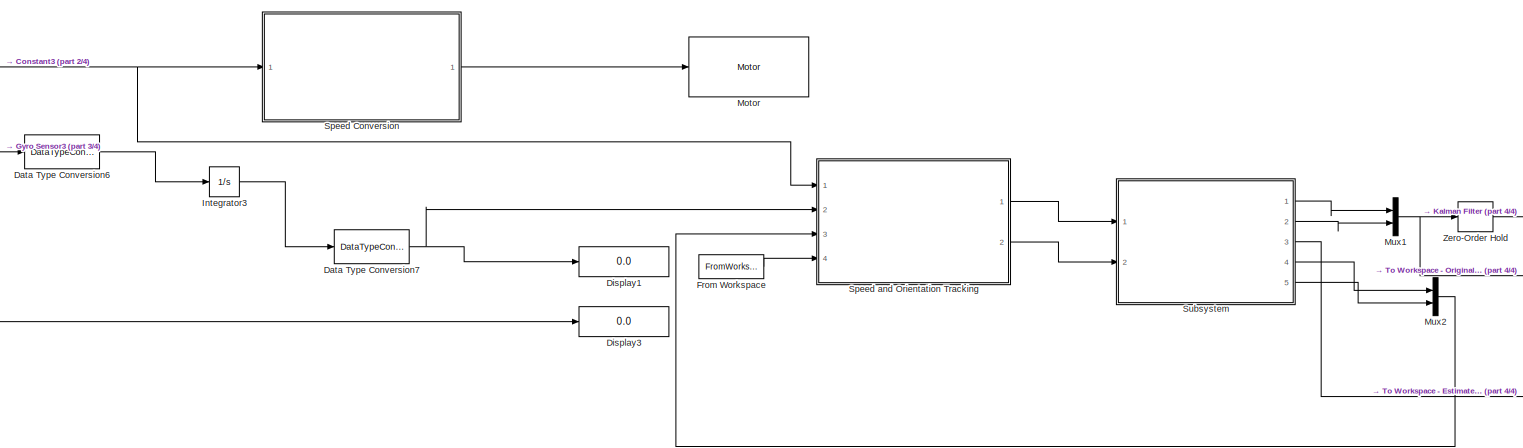
[diagram: root canvas - part 1/4, center side, full height]
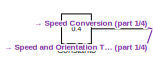
[diagram: root canvas - part 2/4, top left region]
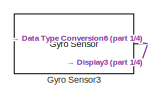
[diagram: root canvas - part 3/4, middle left region]
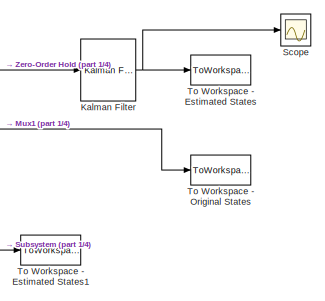
[diagram: root canvas - part 4/4, middle right region]
MODEL slx_6b7b4e6a6c40
KIND model
CONFIG AbsTol = auto
CONFIG FixedStep = auto
CONFIG MaxStep = auto
CONFIG MinStep = auto
CONFIG RelTol = 1e-3
CONFIG SampleTimeConstraint = Unconstrained
CONFIG Solver = FixedStepAuto
CONFIG SolverMode = Auto
CONFIG SolverName = FixedStepAuto
CONFIG StartTime = 0.0
CONFIG StopTime = 10.0
BLOCK [Constant] Constant3
  Value = 0.4
BLOCK [DataTypeConversion] Data Type Conversion6
  OutDataTypeStr = double
  RndMeth = Ceiling
  SaturateOnIntegerOverflow = off
BLOCK [DataTypeConversion] Data Type Conversion7
  OutDataTypeStr = int32
  RndMeth = Ceiling
  SaturateOnIntegerOverflow = off
BLOCK [Display] Display1
  Decimation = 1
  Format = long
  Ports = [1]
BLOCK [Display] Display3
  Decimation = 1
  Format = long
  Ports = [1]
BLOCK [FromWorkspace] From Workspace
  SampleTime = 0
  VariableName = xhat2
  ZeroCross = on
BLOCK [Reference] Gyro Sensor3  REF=legoev3lib/Gyro Sensor
  Ports = [0, 1]
  SourceBlock = legoev3lib/Gyro Sensor
  SourceType = LEGO MINDSTORMS EV3 Gyro Sensor
BLOCK [Integrator] Integrator3
  Ports = [1, 1]
BLOCK [Reference] Kalman Filter  REF=ctrlSharedLib/Kalman Filter
  Ports = [1, 1]
  SourceBlock = ctrlSharedLib/Kalman Filter
  SourceType = ctrlKalmanFilter
BLOCK [Reference] Motor  REF=legoev3lib/Motor
  Ports = [1]
  SourceBlock = legoev3lib/Motor
  SourceType = LEGO MINDSTORMS EV3 Motor
BLOCK [Mux] Mux1
  DisplayOption = bar
  Inputs = 2
  Ports = [2, 1]
BLOCK [Mux] Mux2
  DisplayOption = bar
  Inputs = 2
  Ports = [2, 1]
BLOCK [Scope] Scope
  Ports = [1]
  ScopeSpecificationString = C++SS(StrPVP('SaveName','ScopeData'),StrPVP('SaveName','ScopeData'),StrPVP('LimitDataPoints','on'),StrPVP('DataFormat','Array'),StrPVP('Decimation','1'),StrPVP('BlockParamSampleInput','off'),StrPVP('SaveName','ScopeData'))
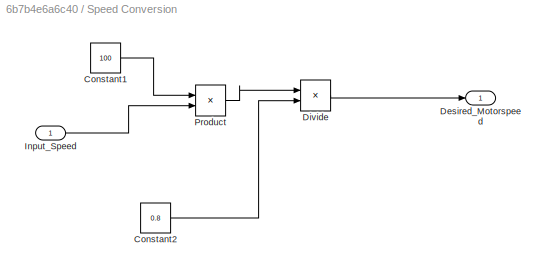
BLOCK [SubSystem] Speed Conversion
  Ports = [1, 1]
  RequestExecContextInheritance = off
  Variant = off
BLOCK [Constant] Speed Conversion/Constant1
  Value = 100
BLOCK [Constant] Speed Conversion/Constant2
  Value = 0.8
BLOCK [Outport] Speed Conversion/Desired_Motorspeed
  IconDisplay = Port number
BLOCK [Product] Speed Conversion/Divide
  InputSameDT = off
  Inputs = */
  OutDataTypeStr = Inherit: Inherit via internal rule
  Ports = [2, 1]
  RndMeth = Floor
  SaturateOnIntegerOverflow = off
BLOCK [Inport] Speed Conversion/Input_Speed
  IconDisplay = Port number
BLOCK [Product] Speed Conversion/Product
  InputSameDT = off
  OutDataTypeStr = Inherit: Inherit via internal rule
  Ports = [2, 1]
  RndMeth = Floor
  SaturateOnIntegerOverflow = off
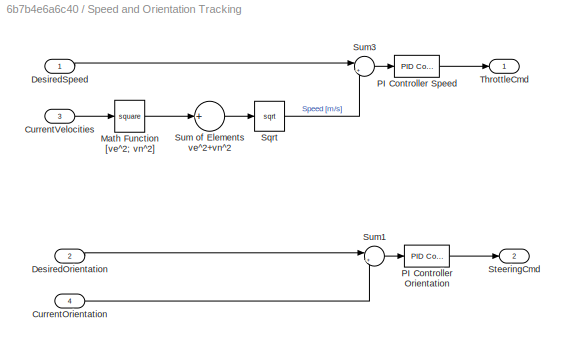
BLOCK [SubSystem] Speed and Orientation Tracking 
  Ports = [4, 2]
  RequestExecContextInheritance = off
  Variant = off
BLOCK [Inport] Speed and Orientation Tracking /CurrentOrientation
  IconDisplay = Port number
  Port = 4
BLOCK [Inport] Speed and Orientation Tracking /CurrentVelocities
  IconDisplay = Port number
  Port = 3
BLOCK [Inport] Speed and Orientation Tracking /DesiredOrientation
  IconDisplay = Port number
  Port = 2
BLOCK [Inport] Speed and Orientation Tracking /DesiredSpeed
  IconDisplay = Port number
BLOCK [Math] Speed and Orientation Tracking /Math Function [ve^2; vn^2]
  Operator = square
  Ports = [1, 1]
BLOCK [Reference] Speed and Orientation Tracking /PI Controller Orientation  REF=simulink/Continuous/PID Controller
  Ports = [1, 1]
  SourceBlock = simulink/Continuous/PID Controller
  SourceType = PID 1dof
BLOCK [Reference] Speed and Orientation Tracking /PI Controller Speed  REF=simulink/Continuous/PID Controller
  Ports = [1, 1]
  SourceBlock = simulink/Continuous/PID Controller
  SourceType = PID 1dof
BLOCK [Sqrt] Speed and Orientation Tracking /Sqrt
BLOCK [Outport] Speed and Orientation Tracking /SteeringCmd
  IconDisplay = Port number
  Port = 2
BLOCK [Sum] Speed and Orientation Tracking /Sum of Elements ve^2+vn^2
  InputSameDT = off
  Inputs = +
  OutDataTypeStr = Inherit: Inherit via internal rule
  Ports = [1, 1]
  SaturateOnIntegerOverflow = off
BLOCK [Sum] Speed and Orientation Tracking /Sum1
  IconShape = round
  InputSameDT = off
  Inputs = |+-
  OutDataTypeStr = Inherit: Inherit via internal rule
  Ports = [2, 1]
  SaturateOnIntegerOverflow = off
BLOCK [Sum] Speed and Orientation Tracking /Sum3
  IconShape = round
  InputSameDT = off
  Inputs = |+-
  OutDataTypeStr = Inherit: Inherit via internal rule
  Ports = [2, 1]
  SaturateOnIntegerOverflow = off
BLOCK [Outport] Speed and Orientation Tracking /ThrottleCmd
  IconDisplay = Port number
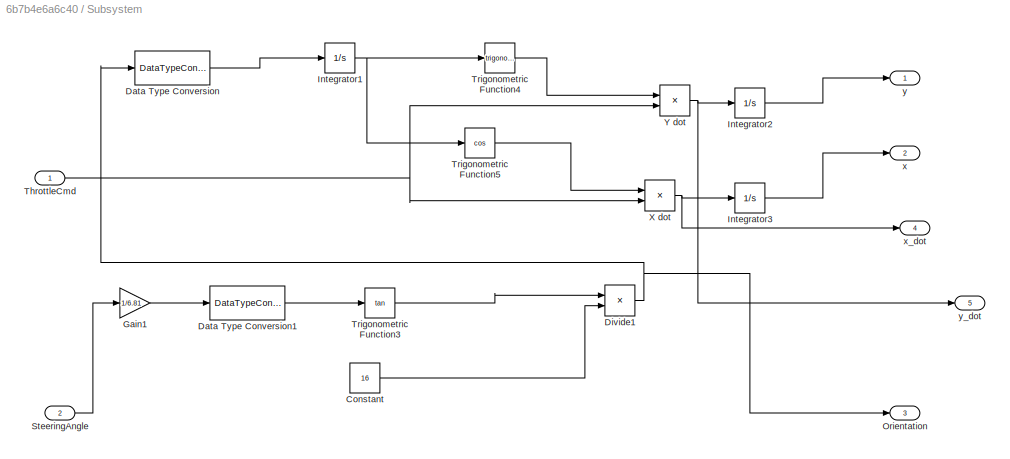
BLOCK [SubSystem] Subsystem
  Ports = [2, 5]
  RequestExecContextInheritance = off
  Variant = off
BLOCK [Constant] Subsystem/Constant
  Value = 16
BLOCK [DataTypeConversion] Subsystem/Data Type Conversion
  OutDataTypeStr = double
  RndMeth = Floor
  SaturateOnIntegerOverflow = off
BLOCK [DataTypeConversion] Subsystem/Data Type Conversion1
  OutDataTypeStr = double
  RndMeth = Floor
  SaturateOnIntegerOverflow = off
BLOCK [Product] Subsystem/Divide1
  InputSameDT = off
  Inputs = */
  OutDataTypeStr = Inherit: Inherit via internal rule
  Ports = [2, 1]
  RndMeth = Floor
  SaturateOnIntegerOverflow = off
BLOCK [Gain] Subsystem/Gain1
  Gain = 1/6.81
  OutDataTypeStr = Inherit: Inherit via internal rule
  ParamDataTypeStr = Inherit: Inherit via internal rule
  SaturateOnIntegerOverflow = off
BLOCK [Integrator] Subsystem/Integrator1
  Ports = [1, 1]
BLOCK [Integrator] Subsystem/Integrator2
  Ports = [1, 1]
BLOCK [Integrator] Subsystem/Integrator3
  Ports = [1, 1]
BLOCK [Outport] Subsystem/Orientation 
  IconDisplay = Port number
  Port = 3
BLOCK [Inport] Subsystem/SteeringAngle
  IconDisplay = Port number
  Port = 2
BLOCK [Inport] Subsystem/ThrottleCmd
  IconDisplay = Port number
BLOCK [Trigonometry] Subsystem/Trigonometric Function3
  Operator = tan
  OutputSignalType = real
  Ports = [1, 1]
BLOCK [Trigonometry] Subsystem/Trigonometric Function4
  Ports = [1, 1]
BLOCK [Trigonometry] Subsystem/Trigonometric Function5
  Operator = cos
  Ports = [1, 1]
BLOCK [Product] Subsystem/X dot 
  InputSameDT = off
  OutDataTypeStr = Inherit: Inherit via internal rule
  Ports = [2, 1]
  RndMeth = Floor
  SaturateOnIntegerOverflow = off
BLOCK [Product] Subsystem/Y dot 
  InputSameDT = off
  OutDataTypeStr = Inherit: Inherit via internal rule
  Ports = [2, 1]
  RndMeth = Floor
  SaturateOnIntegerOverflow = off
BLOCK [Outport] Subsystem/x
  IconDisplay = Port number
  Port = 2
BLOCK [Outport] Subsystem/x_dot 
  IconDisplay = Port number
  Port = 4
BLOCK [Outport] Subsystem/y
  IconDisplay = Port number
BLOCK [Outport] Subsystem/y_dot
  IconDisplay = Port number
  Port = 5
BLOCK [ToWorkspace] To Workspace - Estimated States
  FixptAsFi = on
  MaxDataPoints = inf
  Ports = [1]
  SampleTime = -1
  Save2DSignal = 2-D array (concatenate along first dimension)
  VariableName = xhat
BLOCK [ToWorkspace] To Workspace - Estimated States1
  FixptAsFi = on
  MaxDataPoints = inf
  Ports = [1]
  SampleTime = -1
  Save2DSignal = 2-D array (concatenate along first dimension)
  VariableName = xhat2
BLOCK [ToWorkspace] To Workspace - Original States 
  FixptAsFi = on
  MaxDataPoints = inf
  Ports = [1]
  SampleTime = -1
  Save2DSignal = 2-D array (concatenate along first dimension)
  VariableName = xhat1
BLOCK [ZeroOrderHold] Zero-Order Hold
NET Constant3:1 -> Speed Conversion:1, Speed and Orientation Tracking :1
LINE Data Type Conversion6:1 -> Integrator3:1
NET Data Type Conversion7:1 -> Display1:1, Speed and Orientation Tracking :2
LINE From Workspace:1 -> Speed and Orientation Tracking :4
NET Gyro Sensor3:1 -> Data Type Conversion6:1, Display3:1
LINE Integrator3:1 -> Data Type Conversion7:1
NET Kalman Filter:1 -> Scope:1, To Workspace - Estimated States:1
NET Mux1:1 -> To Workspace - Original States :1, Zero-Order Hold:1
LINE Mux2:1 -> Speed and Orientation Tracking :3
LINE Speed Conversion/Constant1:1 -> Speed Conversion/Product:1
LINE Speed Conversion/Constant2:1 -> Speed Conversion/Divide:2
LINE Speed Conversion/Divide:1 -> Speed Conversion/Desired_Motorspeed:1
LINE Speed Conversion/Input_Speed:1 -> Speed Conversion/Product:2
LINE Speed Conversion/Product:1 -> Speed Conversion/Divide:1
LINE Speed Conversion:1 -> Motor:1
LINE Speed and Orientation Tracking /CurrentOrientation:1 -> Speed and Orientation Tracking /Sum1:2
LINE Speed and Orientation Tracking /CurrentVelocities:1 -> Speed and Orientation Tracking /Math Function [ve^2; vn^2]:1
LINE Speed and Orientation Tracking /DesiredOrientation:1 -> Speed and Orientation Tracking /Sum1:1
LINE Speed and Orientation Tracking /DesiredSpeed:1 -> Speed and Orientation Tracking /Sum3:1
LINE Speed and Orientation Tracking /Math Function [ve^2; vn^2]:1 -> Speed and Orientation Tracking /Sum of Elements ve^2+vn^2:1
LINE Speed and Orientation Tracking /PI Controller Orientation:1 -> Speed and Orientation Tracking /SteeringCmd:1
LINE Speed and Orientation Tracking /PI Controller Speed:1 -> Speed and Orientation Tracking /ThrottleCmd:1
LINE Speed and Orientation Tracking /Sqrt:1 -> Speed and Orientation Tracking /Sum3:2
LINE Speed and Orientation Tracking /Sum of Elements ve^2+vn^2:1 -> Speed and Orientation Tracking /Sqrt:1
LINE Speed and Orientation Tracking /Sum1:1 -> Speed and Orientation Tracking /PI Controller Orientation:1
LINE Speed and Orientation Tracking /Sum3:1 -> Speed and Orientation Tracking /PI Controller Speed:1
LINE Speed and Orientation Tracking :1 -> Subsystem:1
LINE Speed and Orientation Tracking :2 -> Subsystem:2
LINE Subsystem/Constant:1 -> Subsystem/Divide1:2
LINE Subsystem/Data Type Conversion1:1 -> Subsystem/Trigonometric Function3:1
LINE Subsystem/Data Type Conversion:1 -> Subsystem/Integrator1:1
NET Subsystem/Divide1:1 -> Subsystem/Data Type Conversion:1, Subsystem/Orientation :1
LINE Subsystem/Gain1:1 -> Subsystem/Data Type Conversion1:1
NET Subsystem/Integrator1:1 -> Subsystem/Trigonometric Function4:1, Subsystem/Trigonometric Function5:1
LINE Subsystem/Integrator2:1 -> Subsystem/y:1
LINE Subsystem/Integrator3:1 -> Subsystem/x:1
LINE Subsystem/SteeringAngle:1 -> Subsystem/Gain1:1
NET Subsystem/ThrottleCmd:1 -> Subsystem/X dot :2, Subsystem/Y dot :2
LINE Subsystem/Trigonometric Function3:1 -> Subsystem/Divide1:1
LINE Subsystem/Trigonometric Function4:1 -> Subsystem/Y dot :1
LINE Subsystem/Trigonometric Function5:1 -> Subsystem/X dot :1
NET Subsystem/X dot :1 -> Subsystem/Integrator3:1, Subsystem/x_dot :1
NET Subsystem/Y dot :1 -> Subsystem/Integrator2:1, Subsystem/y_dot:1
LINE Subsystem:1 -> Mux1:1
LINE Subsystem:2 -> Mux1:2
LINE Subsystem:3 -> To Workspace - Estimated States1:1
LINE Subsystem:4 -> Mux2:1
LINE Subsystem:5 -> Mux2:2
LINE Zero-Order Hold:1 -> Kalman Filter:1
note: NET lines group one-source signal fan-out (src -> all destinations, sorted); 1:1 wires keep LINE
